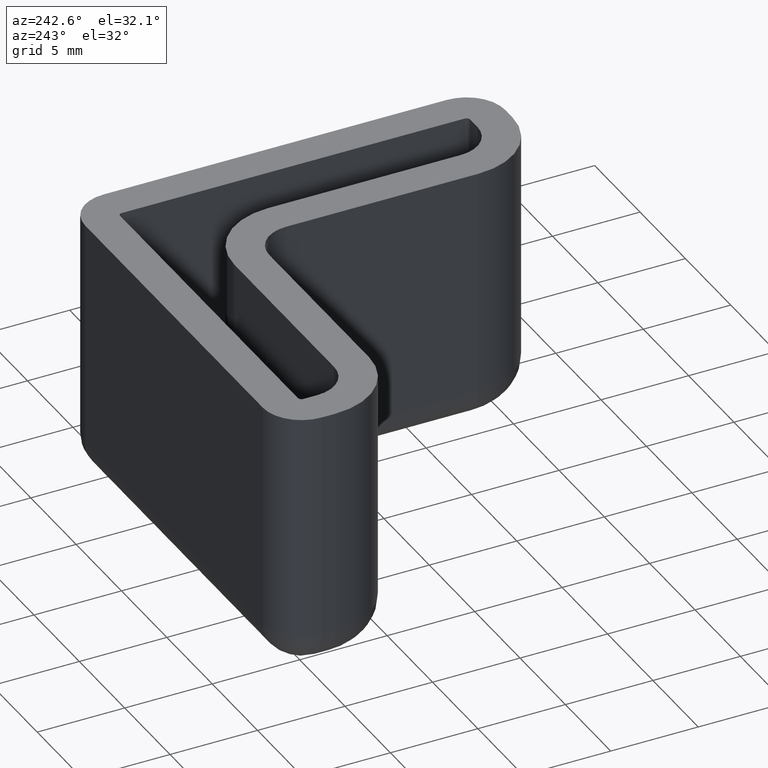
[diagram: clean part render]
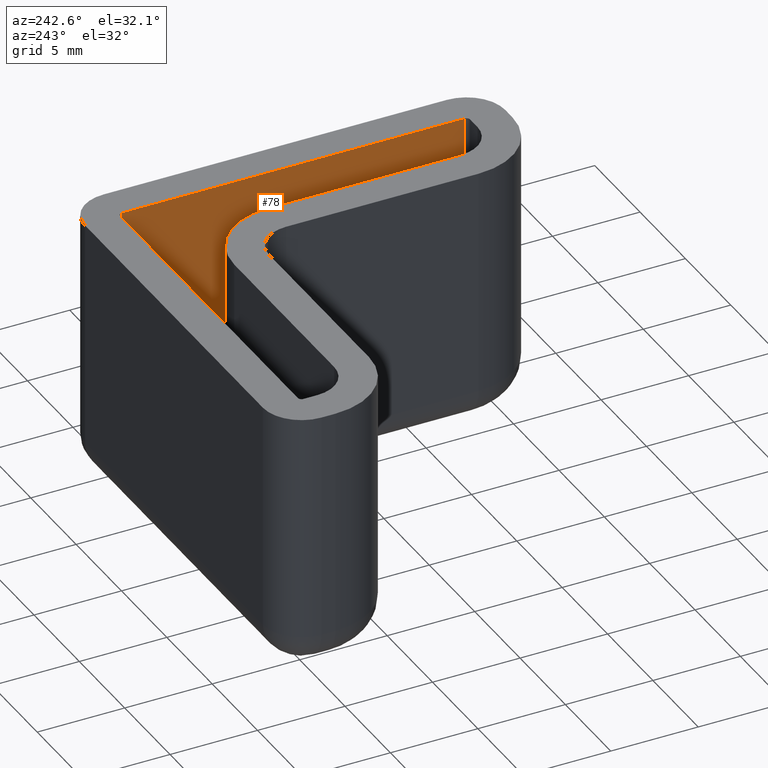
[diagram: same view with one face highlighted and labeled with its STEP entity id]
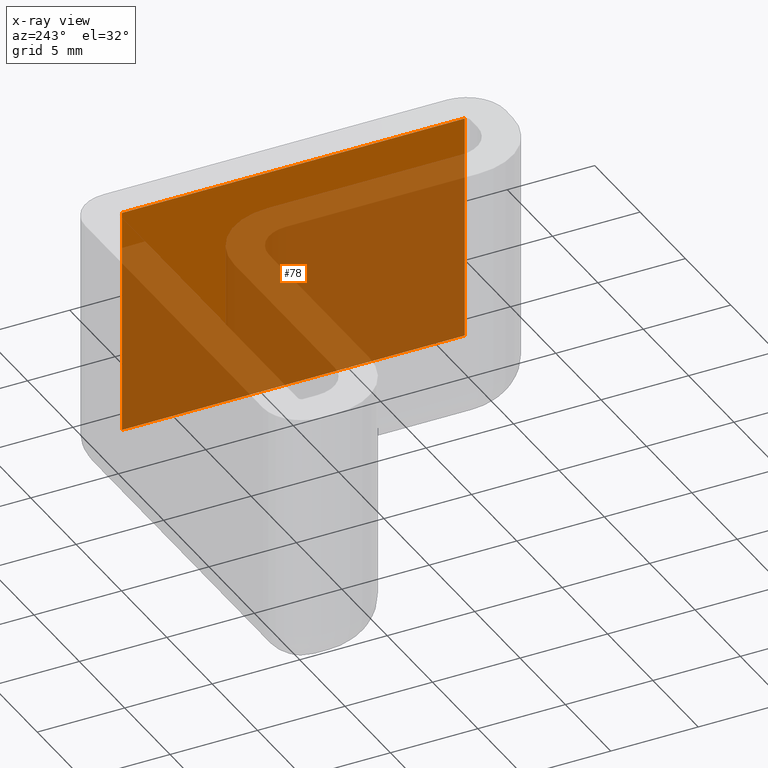
[diagram: x-ray of the same camera — body ghosted, the highlighted face saturated]
A machine part, auxiliary view. The second image highlights one B-rep face of the part: STEP entity #78.
The next image is the same camera in x-ray: the body ghosted, the highlighted face saturated — about 78% of this face is hidden behind the body in this view.
In plain terms, the highlighted planar face has unit normal (-1, 0, 0).
Its self-contained STEP definition (entity closure, byte-faithful):
#78 = ADVANCED_FACE( '', ( #122 ), #123, .T. );
#122 = FACE_OUTER_BOUND( '', #201, .T. );
#123 = PLANE( '', #202 );
#201 = EDGE_LOOP( '', ( #380, #381, #382, #383 ) );
#202 = AXIS2_PLACEMENT_3D( '', #384, #385, #386 );
#380 = ORIENTED_EDGE( '', *, *, #669, .T. );
#381 = ORIENTED_EDGE( '', *, *, #670, .F. );
#382 = ORIENTED_EDGE( '', *, *, #666, .F. );
#383 = ORIENTED_EDGE( '', *, *, #651, .F. );
#384 = CARTESIAN_POINT( '', ( -3.63708087085246E-015, -19.8000000000000, 30.0000000000000 ) );
#385 = DIRECTION( '', ( -1.00000000000000, 1.83690953073357E-016, 0.000000000000000 ) );
#386 = DIRECTION( '', ( -1.83690953073357E-016, -1.00000000000000, 0.000000000000000 ) );
#651 = EDGE_CURVE( '', #759, #760, #761, .T. );
#666 = EDGE_CURVE( '', #760, #788, #789, .T. );
#669 = EDGE_CURVE( '', #759, #793, #794, .T. );
#670 = EDGE_CURVE( '', #788, #793, #795, .T. );
#759 = VERTEX_POINT( '', #921 );
#760 = VERTEX_POINT( '', #922 );
#761 = LINE( '', #923, #924 );
#788 = VERTEX_POINT( '', #958 );
#789 = LINE( '', #959, #960 );
#793 = VERTEX_POINT( '', #965 );
#794 = LINE( '', #966, #967 );
#795 = LINE( '', #968, #969 );
#921 = CARTESIAN_POINT( '', ( -3.67381906146718E-017, -0.200000000000002, 0.000000000000000 ) );
#922 = CARTESIAN_POINT( '', ( -3.63708087085246E-015, -19.8000000000000, 0.000000000000000 ) );
#923 = CARTESIAN_POINT( '', ( -3.64444802461450E-015, -19.8000000000000, 0.000000000000000 ) );
#924 = VECTOR( '', #1125, 1000.00000000000 );
#958 = CARTESIAN_POINT( '', ( -3.63708087085246E-015, -19.8000000000000, -13.0000000000000 ) );
#959 = CARTESIAN_POINT( '', ( -3.63708087085246E-015, -19.8000000000000, 30.0000000000000 ) );
#960 = VECTOR( '', #1154, 1000.00000000000 );
#965 = CARTESIAN_POINT( '', ( -3.67381906146718E-017, -0.200000000000002, -13.0000000000000 ) );
#966 = CARTESIAN_POINT( '', ( -3.67381906146718E-017, -0.200000000000002, 30.0000000000000 ) );
#967 = VECTOR( '', #1159, 1000.00000000000 );
#968 = CARTESIAN_POINT( '', ( -3.63708087085246E-015, -19.8000000000000, -13.0000000000000 ) );
#969 = VECTOR( '', #1160, 1000.00000000000 );
#1125 = DIRECTION( '', ( -1.83690953073357E-016, -1.00000000000000, 0.000000000000000 ) );
#1154 = DIRECTION( '', ( 0.000000000000000, 0.000000000000000, -1.00000000000000 ) );
#1159 = DIRECTION( '', ( 0.000000000000000, 0.000000000000000, -1.00000000000000 ) );
#1160 = DIRECTION( '', ( 1.83690953073357E-016, 1.00000000000000, 0.000000000000000 ) );